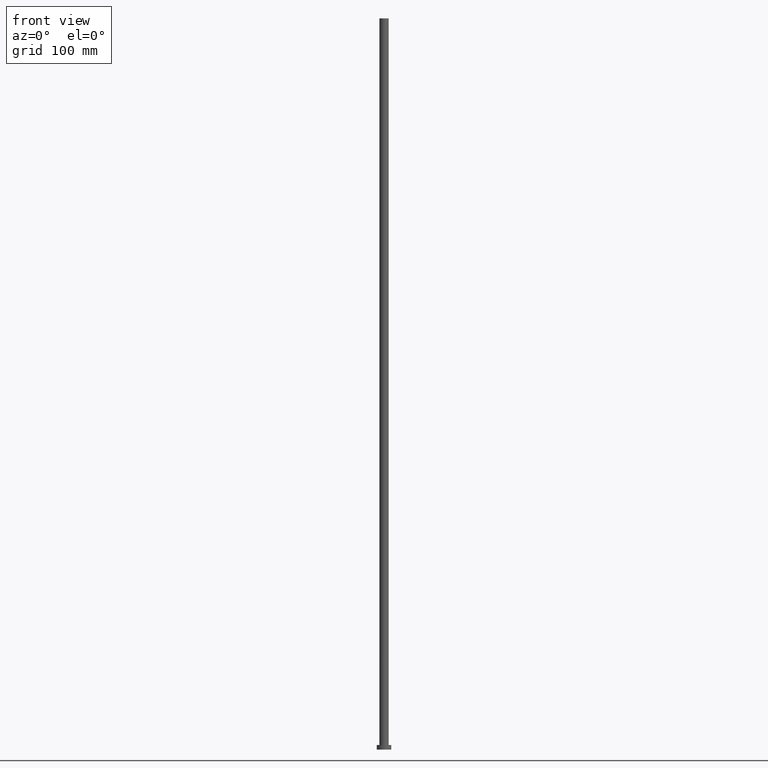
[diagram: clean part render]
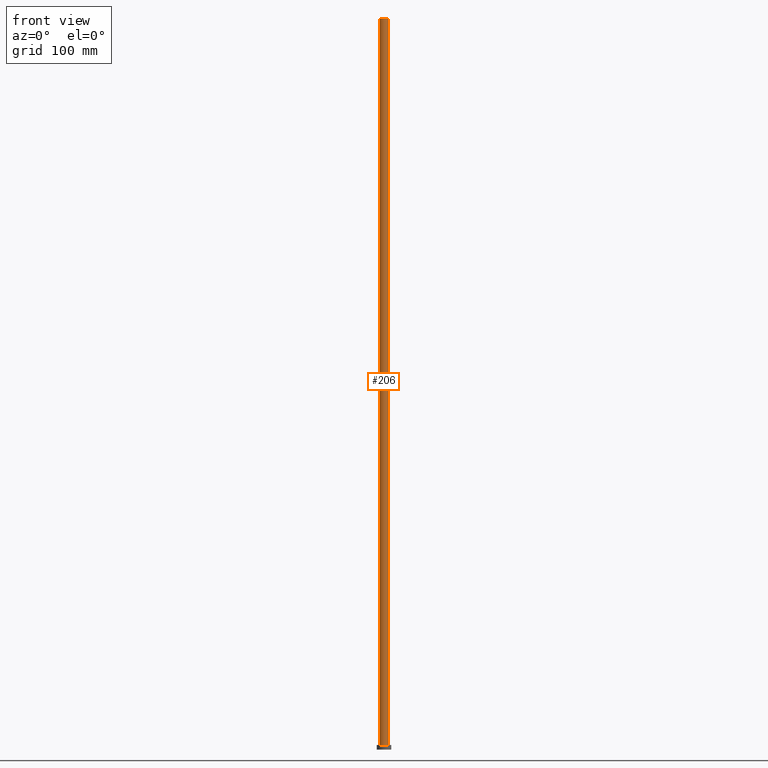
[diagram: same view with one face highlighted and labeled with its STEP entity id]
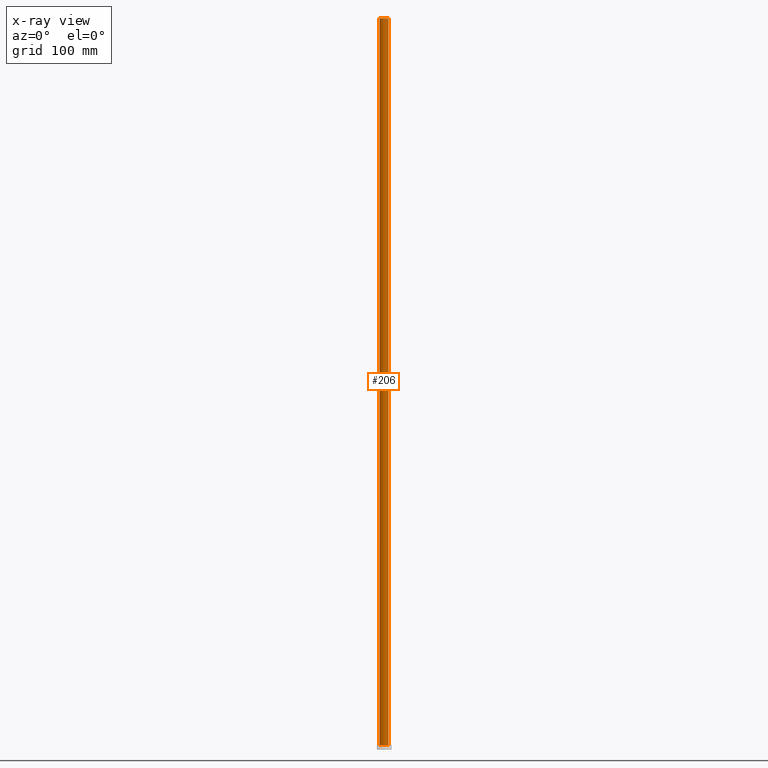
[diagram: x-ray of the same camera — body ghosted, the highlighted face saturated]
A machine part, front view. The second image highlights one B-rep face of the part: STEP entity #206.
The next image is the same camera in x-ray: the body ghosted, the highlighted face saturated — about 0% of this face is hidden behind the body in this view.
In plain terms, the highlighted cylindrical surface (edge-blend (fillet) strip) has radius 5.1 mm, axis along (-0, -0, -1).
Its self-contained STEP definition (entity closure, byte-faithful):
#2 = ORIENTED_EDGE ( 'NONE', *, *, #84, .F. ) ;
#15 = CARTESIAN_POINT ( 'NONE',  ( 5.100000000000001421, 6.245698675651502811E-16, 800.0000000000000000 ) ) ;
#16 = CARTESIAN_POINT ( 'NONE',  ( -5.100000000000001421, 0.000000000000000000, 800.0000000000000000 ) ) ;
#18 = CYLINDRICAL_SURFACE ( 'NONE', #184, 5.100000000000001421 ) ;
#27 = EDGE_LOOP ( 'NONE', ( #2, #214, #146, #138 ) ) ;
#35 = CARTESIAN_POINT ( 'NONE',  ( 0.000000000000000000, 0.000000000000000000, 800.0000000000000000 ) ) ;
#42 = VERTEX_POINT ( 'NONE', #107 ) ;
#56 = CARTESIAN_POINT ( 'NONE',  ( 5.100000000000001421, 6.245698675651502811E-16, 5.000000000000000000 ) ) ;
#80 = CARTESIAN_POINT ( 'NONE',  ( -5.100000000000001421, 0.000000000000000000, 5.000000000000000000 ) ) ;
#83 = AXIS2_PLACEMENT_3D ( 'NONE', #35, #156, #173 ) ;
#84 = EDGE_CURVE ( 'NONE', #165, #254, #148, .T. ) ;
#96 = DIRECTION ( 'NONE',  ( 1.000000000000000000, 0.000000000000000000, 0.000000000000000000 ) ) ;
#98 = CIRCLE ( 'NONE', #83, 5.100000000000001421 ) ;
#107 = CARTESIAN_POINT ( 'NONE',  ( -5.100000000000001421, 0.000000000000000000, 800.0000000000000000 ) ) ;
#113 = LINE ( 'NONE', #16, #221 ) ;
#116 = DIRECTION ( 'NONE',  ( -1.000000000000000000, 0.000000000000000000, 0.000000000000000000 ) ) ;
#128 = CARTESIAN_POINT ( 'NONE',  ( 5.100000000000001421, 6.245698675651502811E-16, 800.0000000000000000 ) ) ;
#131 = DIRECTION ( 'NONE',  ( 0.000000000000000000, 0.000000000000000000, 1.000000000000000000 ) ) ;
#137 = CARTESIAN_POINT ( 'NONE',  ( 0.000000000000000000, 0.000000000000000000, 800.0000000000000000 ) ) ;
#138 = ORIENTED_EDGE ( 'NONE', *, *, #224, .T. ) ;
#146 = ORIENTED_EDGE ( 'NONE', *, *, #201, .T. ) ;
#148 = LINE ( 'NONE', #128, #204 ) ;
#156 = DIRECTION ( 'NONE',  ( 0.000000000000000000, 0.000000000000000000, 1.000000000000000000 ) ) ;
#165 = VERTEX_POINT ( 'NONE', #15 ) ;
#168 = AXIS2_PLACEMENT_3D ( 'NONE', #230, #131, #96 ) ;
#173 = DIRECTION ( 'NONE',  ( 1.000000000000000000, 0.000000000000000000, 0.000000000000000000 ) ) ;
#180 = CIRCLE ( 'NONE', #168, 5.100000000000001421 ) ;
#184 = AXIS2_PLACEMENT_3D ( 'NONE', #137, #188, #116 ) ;
#188 = DIRECTION ( 'NONE',  ( -0.000000000000000000, -0.000000000000000000, -1.000000000000000000 ) ) ;
#189 = FACE_OUTER_BOUND ( 'NONE', #27, .T. ) ;
#201 = EDGE_CURVE ( 'NONE', #42, #205, #113, .T. ) ;
#204 = VECTOR ( 'NONE', #209, 1000.000000000000000 ) ;
#205 = VERTEX_POINT ( 'NONE', #80 ) ;
#206 = ADVANCED_FACE ( 'NONE', ( #189 ), #18, .T. ) ;
#209 = DIRECTION ( 'NONE',  ( -0.000000000000000000, -0.000000000000000000, -1.000000000000000000 ) ) ;
#214 = ORIENTED_EDGE ( 'NONE', *, *, #232, .F. ) ;
#221 = VECTOR ( 'NONE', #251, 1000.000000000000000 ) ;
#224 = EDGE_CURVE ( 'NONE', #205, #254, #180, .T. ) ;
#230 = CARTESIAN_POINT ( 'NONE',  ( 0.000000000000000000, 0.000000000000000000, 5.000000000000000000 ) ) ;
#232 = EDGE_CURVE ( 'NONE', #42, #165, #98, .T. ) ;
#251 = DIRECTION ( 'NONE',  ( -0.000000000000000000, -0.000000000000000000, -1.000000000000000000 ) ) ;
#254 = VERTEX_POINT ( 'NONE', #56 ) ;